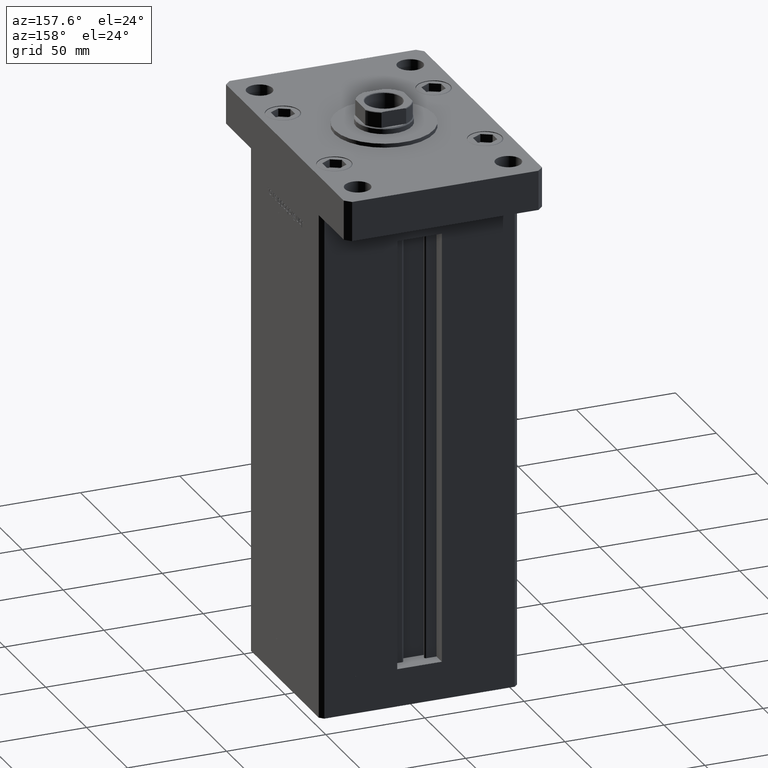
[diagram: clean part render]
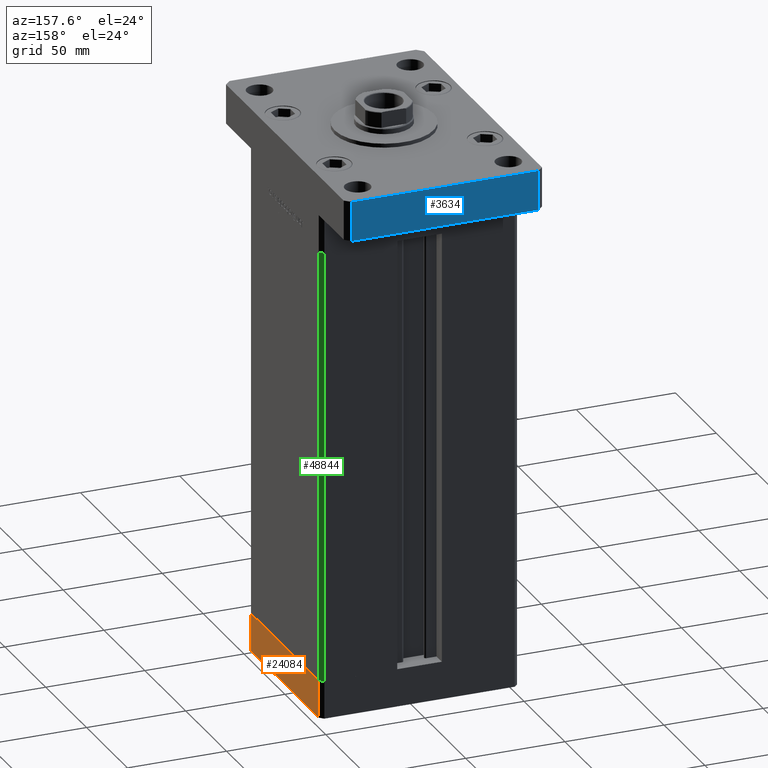
[diagram: same view with three faces highlighted in distinct colors, each labeled with its STEP entity id]
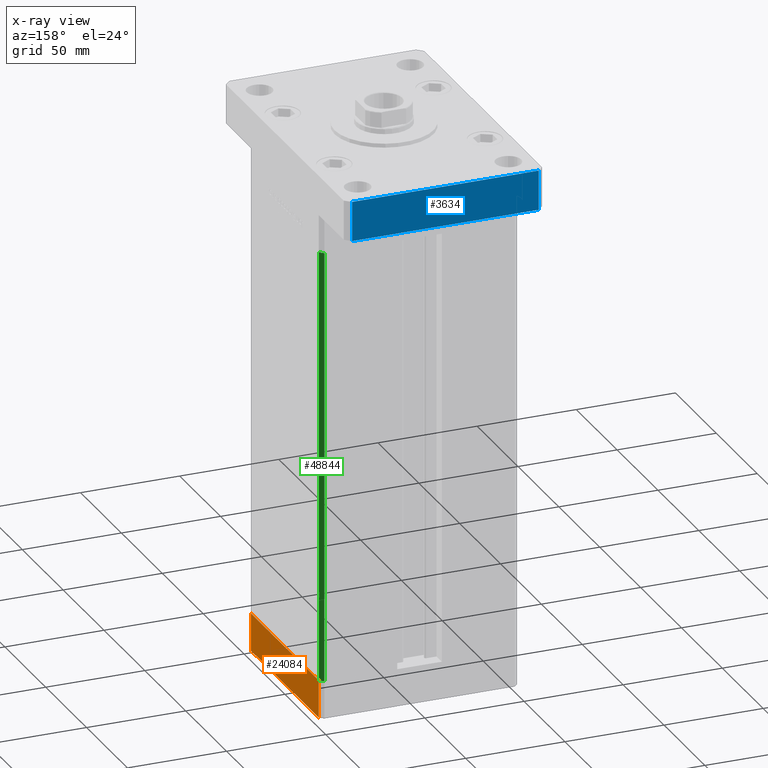
[diagram: x-ray of the same camera — body ghosted, the three highlighted faces saturated]
A machine part, auxiliary view with three faces highlighted in distinct colors.
The next image is the same camera in x-ray (body ghosted, the three faces saturated) — at least one of them is partly hidden behind the body in this view.
Their STEP definitions:

[orange] entity #24084 — the highlighted planar face has unit normal (1, -0, 0).
#89 = EDGE_CURVE ( 'NONE', #50808, #18667, #9687, .T. ) ;
#2282 = PLANE ( 'NONE',  #27916 ) ;
#3078 = CARTESIAN_POINT ( 'NONE',  ( -50.00000000000000000, -41.50000000000000000, -19.00000000000000000 ) ) ;
#4512 = EDGE_LOOP ( 'NONE', ( #22993, #35935, #46037, #53096 ) ) ;
#5557 = CARTESIAN_POINT ( 'NONE',  ( -50.00000000000000711, 41.49999999999995026, -19.00000000000000000 ) ) ;
#9687 = LINE ( 'NONE', #50600, #28164 ) ;
#10093 = LINE ( 'NONE', #18273, #16411 ) ;
#10994 = CARTESIAN_POINT ( 'NONE',  ( -50.00000000000000000, -41.50000000000000000, -19.00000000000000000 ) ) ;
#13460 = VERTEX_POINT ( 'NONE', #5557 ) ;
#14559 = DIRECTION ( 'NONE',  ( -1.000000000000000000, -8.360113137237628665E-17, 0.000000000000000000 ) ) ;
#16411 = VECTOR ( 'NONE', #47200, 1000.000000000000000 ) ;
#18273 = CARTESIAN_POINT ( 'NONE',  ( -50.00000000000000711, 41.49999999999995026, -19.00000000000000000 ) ) ;
#18667 = VERTEX_POINT ( 'NONE', #23253 ) ;
#20157 = CARTESIAN_POINT ( 'NONE',  ( -50.00000000000000711, 41.49999999999995026, 0.000000000000000000 ) ) ;
#20626 = EDGE_CURVE ( 'NONE', #25026, #18667, #52716, .T. ) ;
#21081 = DIRECTION ( 'NONE',  ( 0.000000000000000000, 0.000000000000000000, 1.000000000000000000 ) ) ;
#22468 = FACE_OUTER_BOUND ( 'NONE', #4512, .T. ) ;
#22993 = ORIENTED_EDGE ( 'NONE', *, *, #89, .F. ) ;
#23253 = CARTESIAN_POINT ( 'NONE',  ( -50.00000000000000000, -41.50000000000000000, 0.000000000000000000 ) ) ;
#24084 = ADVANCED_FACE ( 'NONE', ( #22468 ), #2282, .T. ) ;
#25026 = VERTEX_POINT ( 'NONE', #10994 ) ;
#25156 = VECTOR ( 'NONE', #44541, 1000.000000000000000 ) ;
#27916 = AXIS2_PLACEMENT_3D ( 'NONE', #52448, #14559, #36086 ) ;
#28164 = VECTOR ( 'NONE', #33975, 1000.000000000000000 ) ;
#33975 = DIRECTION ( 'NONE',  ( 8.360113137237628665E-17, -1.000000000000000000, 0.000000000000000000 ) ) ;
#35935 = ORIENTED_EDGE ( 'NONE', *, *, #49315, .F. ) ;
#36086 = DIRECTION ( 'NONE',  ( 8.360113137237628665E-17, -1.000000000000000000, 0.000000000000000000 ) ) ;
#41558 = CARTESIAN_POINT ( 'NONE',  ( -50.00000000000000711, 41.49999999999995026, -19.00000000000000000 ) ) ;
#41848 = VECTOR ( 'NONE', #21081, 1000.000000000000000 ) ;
#44182 = EDGE_CURVE ( 'NONE', #13460, #25026, #10093, .T. ) ;
#44541 = DIRECTION ( 'NONE',  ( 0.000000000000000000, 0.000000000000000000, 1.000000000000000000 ) ) ;
#46037 = ORIENTED_EDGE ( 'NONE', *, *, #44182, .T. ) ;
#47200 = DIRECTION ( 'NONE',  ( 8.360113137237628665E-17, -1.000000000000000000, 0.000000000000000000 ) ) ;
#49315 = EDGE_CURVE ( 'NONE', #13460, #50808, #53286, .T. ) ;
#50600 = CARTESIAN_POINT ( 'NONE',  ( -50.00000000000000711, 41.49999999999995026, 0.000000000000000000 ) ) ;
#50808 = VERTEX_POINT ( 'NONE', #20157 ) ;
#52448 = CARTESIAN_POINT ( 'NONE',  ( -50.00000000000000711, 41.49999999999995026, -19.00000000000000000 ) ) ;
#52716 = LINE ( 'NONE', #3078, #25156 ) ;
#53096 = ORIENTED_EDGE ( 'NONE', *, *, #20626, .T. ) ;
#53286 = LINE ( 'NONE', #41558, #41848 ) ;

[blue] entity #3634 — the highlighted planar face has unit normal (0, -1, 0).
#3634 = ADVANCED_FACE ( 'NONE', ( #7086 ), #22438, .F. ) ;
#4072 = VECTOR ( 'NONE', #28979, 1000.000000000000000 ) ;
#4493 = CARTESIAN_POINT ( 'NONE',  ( 47.00000000000002842, 75.00000000000002842, 20.00000000000000000 ) ) ;
#7086 = FACE_OUTER_BOUND ( 'NONE', #12323, .T. ) ;
#9631 = DIRECTION ( 'NONE',  ( 2.952720810173287140E-16, -1.000000000000000000, 0.000000000000000000 ) ) ;
#11962 = EDGE_CURVE ( 'NONE', #14591, #14104, #49591, .T. ) ;
#12323 = EDGE_LOOP ( 'NONE', ( #24618, #27209, #27884, #22108 ) ) ;
#12731 = VERTEX_POINT ( 'NONE', #50542 ) ;
#14104 = VERTEX_POINT ( 'NONE', #36387 ) ;
#14591 = VERTEX_POINT ( 'NONE', #25926 ) ;
#16518 = EDGE_CURVE ( 'NONE', #12731, #22824, #51238, .T. ) ;
#19394 = CARTESIAN_POINT ( 'NONE',  ( 47.00000000000002842, 75.00000000000002842, 0.000000000000000000 ) ) ;
#22108 = ORIENTED_EDGE ( 'NONE', *, *, #52171, .T. ) ;
#22438 = PLANE ( 'NONE',  #50938 ) ;
#22824 = VERTEX_POINT ( 'NONE', #47096 ) ;
#24618 = ORIENTED_EDGE ( 'NONE', *, *, #11962, .T. ) ;
#25926 = CARTESIAN_POINT ( 'NONE',  ( 47.00000000000002842, 75.00000000000002842, 0.000000000000000000 ) ) ;
#27209 = ORIENTED_EDGE ( 'NONE', *, *, #34836, .F. ) ;
#27884 = ORIENTED_EDGE ( 'NONE', *, *, #16518, .F. ) ;
#28979 = DIRECTION ( 'NONE',  ( -0.000000000000000000, -0.000000000000000000, -1.000000000000000000 ) ) ;
#32874 = VECTOR ( 'NONE', #36046, 1000.000000000000000 ) ;
#34617 = DIRECTION ( 'NONE',  ( -1.000000000000000000, -2.952720810173287140E-16, 0.000000000000000000 ) ) ;
#34836 = EDGE_CURVE ( 'NONE', #22824, #14104, #53251, .T. ) ;
#36046 = DIRECTION ( 'NONE',  ( -1.000000000000000000, -2.952720810173287140E-16, 0.000000000000000000 ) ) ;
#36387 = CARTESIAN_POINT ( 'NONE',  ( -47.00000000000002842, 75.00000000000000000, 0.000000000000000000 ) ) ;
#39102 = DIRECTION ( 'NONE',  ( 1.000000000000000000, 2.952720810173287140E-16, 0.000000000000000000 ) ) ;
#41867 = LINE ( 'NONE', #4493, #43684 ) ;
#43080 = CARTESIAN_POINT ( 'NONE',  ( 47.00000000000002842, 75.00000000000002842, 20.00000000000000000 ) ) ;
#43684 = VECTOR ( 'NONE', #46754, 1000.000000000000000 ) ;
#46754 = DIRECTION ( 'NONE',  ( -0.000000000000000000, -0.000000000000000000, -1.000000000000000000 ) ) ;
#47001 = CARTESIAN_POINT ( 'NONE',  ( 47.00000000000002842, 75.00000000000002842, 20.00000000000000000 ) ) ;
#47096 = CARTESIAN_POINT ( 'NONE',  ( -47.00000000000002842, 75.00000000000000000, 20.00000000000000000 ) ) ;
#49591 = LINE ( 'NONE', #19394, #32874 ) ;
#49705 = CARTESIAN_POINT ( 'NONE',  ( -47.00000000000002842, 75.00000000000000000, 20.00000000000000000 ) ) ;
#50542 = CARTESIAN_POINT ( 'NONE',  ( 47.00000000000002842, 75.00000000000002842, 20.00000000000000000 ) ) ;
#50938 = AXIS2_PLACEMENT_3D ( 'NONE', #47001, #9631, #39102 ) ;
#51211 = VECTOR ( 'NONE', #34617, 1000.000000000000000 ) ;
#51238 = LINE ( 'NONE', #43080, #51211 ) ;
#52171 = EDGE_CURVE ( 'NONE', #12731, #14591, #41867, .T. ) ;
#53251 = LINE ( 'NONE', #49705, #4072 ) ;

[green] entity #48844 — the highlighted planar face has unit normal (0.7071, 0.7071, 0).
#6515 = EDGE_LOOP ( 'NONE', ( #25463, #25654, #14492, #6587 ) ) ;
#6587 = ORIENTED_EDGE ( 'NONE', *, *, #8889, .T. ) ;
#6957 = AXIS2_PLACEMENT_3D ( 'NONE', #52229, #40505, #11573 ) ;
#8889 = EDGE_CURVE ( 'NONE', #16809, #49601, #32404, .T. ) ;
#9965 = CARTESIAN_POINT ( 'NONE',  ( 48.00000000000000711, 43.50000000000000000, 0.000000000000000000 ) ) ;
#11573 = DIRECTION ( 'NONE',  ( -0.7071067811865486830, 0.7071067811865463515, 0.000000000000000000 ) ) ;
#12084 = EDGE_CURVE ( 'NONE', #40148, #52564, #21758, .T. ) ;
#13583 = CARTESIAN_POINT ( 'NONE',  ( 48.00000000000000711, 43.50000000000000000, 218.5000000000000000 ) ) ;
#14492 = ORIENTED_EDGE ( 'NONE', *, *, #23539, .T. ) ;
#16809 = VERTEX_POINT ( 'NONE', #38707 ) ;
#18476 = DIRECTION ( 'NONE',  ( -0.000000000000000000, -0.000000000000000000, -1.000000000000000000 ) ) ;
#21758 = LINE ( 'NONE', #13583, #46824 ) ;
#23414 = DIRECTION ( 'NONE',  ( -0.000000000000000000, -0.000000000000000000, -1.000000000000000000 ) ) ;
#23539 = EDGE_CURVE ( 'NONE', #40148, #16809, #28559, .T. ) ;
#24270 = CARTESIAN_POINT ( 'NONE',  ( 48.00000000000000711, 43.50000000000000000, 0.000000000000000000 ) ) ;
#25463 = ORIENTED_EDGE ( 'NONE', *, *, #50058, .F. ) ;
#25654 = ORIENTED_EDGE ( 'NONE', *, *, #12084, .F. ) ;
#26704 = VECTOR ( 'NONE', #23414, 1000.000000000000000 ) ;
#28304 = CARTESIAN_POINT ( 'NONE',  ( 50.00000000000001421, 41.49999999999999289, 218.5000000000000000 ) ) ;
#28559 = LINE ( 'NONE', #45737, #29599 ) ;
#29599 = VECTOR ( 'NONE', #49829, 1000.000000000000000 ) ;
#32404 = LINE ( 'NONE', #28304, #26704 ) ;
#35607 = PLANE ( 'NONE',  #6957 ) ;
#38707 = CARTESIAN_POINT ( 'NONE',  ( 50.00000000000001421, 41.49999999999999289, 218.5000000000000000 ) ) ;
#40148 = VERTEX_POINT ( 'NONE', #42200 ) ;
#40505 = DIRECTION ( 'NONE',  ( 0.7071067811865463515, 0.7071067811865486830, -0.000000000000000000 ) ) ;
#41706 = DIRECTION ( 'NONE',  ( 0.7071067811865487940, -0.7071067811865463515, 0.000000000000000000 ) ) ;
#42200 = CARTESIAN_POINT ( 'NONE',  ( 48.00000000000000711, 43.50000000000000000, 218.5000000000000000 ) ) ;
#43531 = LINE ( 'NONE', #9965, #50514 ) ;
#44591 = FACE_OUTER_BOUND ( 'NONE', #6515, .T. ) ;
#45737 = CARTESIAN_POINT ( 'NONE',  ( 48.00000000000000711, 43.50000000000000000, 218.5000000000000000 ) ) ;
#46824 = VECTOR ( 'NONE', #18476, 1000.000000000000000 ) ;
#48844 = ADVANCED_FACE ( 'NONE', ( #44591 ), #35607, .T. ) ;
#49118 = CARTESIAN_POINT ( 'NONE',  ( 50.00000000000001421, 41.49999999999999289, 0.000000000000000000 ) ) ;
#49601 = VERTEX_POINT ( 'NONE', #49118 ) ;
#49829 = DIRECTION ( 'NONE',  ( 0.7071067811865487940, -0.7071067811865463515, 0.000000000000000000 ) ) ;
#50058 = EDGE_CURVE ( 'NONE', #52564, #49601, #43531, .T. ) ;
#50514 = VECTOR ( 'NONE', #41706, 1000.000000000000000 ) ;
#52229 = CARTESIAN_POINT ( 'NONE',  ( 48.00000000000000711, 43.50000000000000000, 218.5000000000000000 ) ) ;
#52564 = VERTEX_POINT ( 'NONE', #24270 ) ;